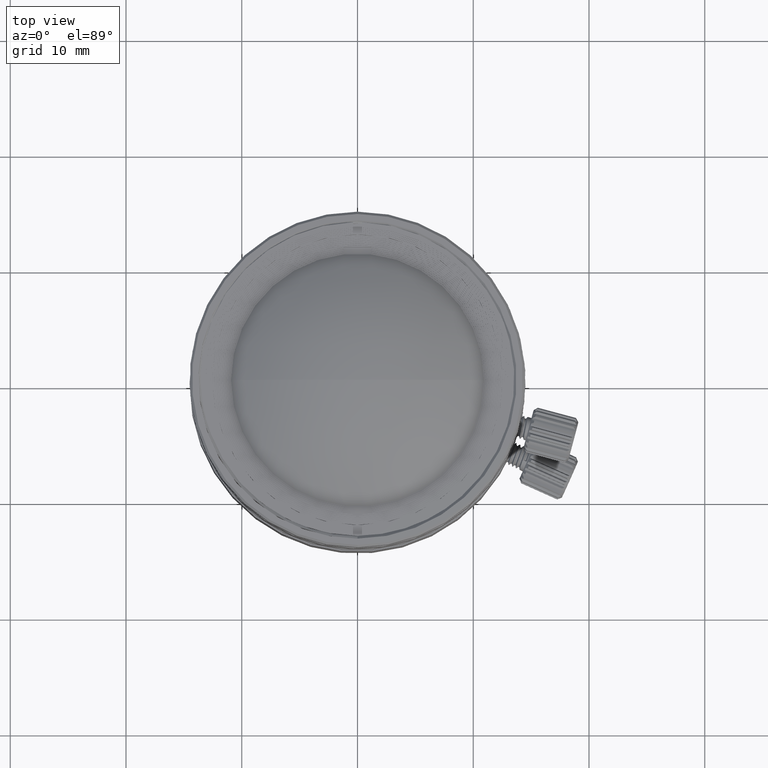
[diagram: clean part render]
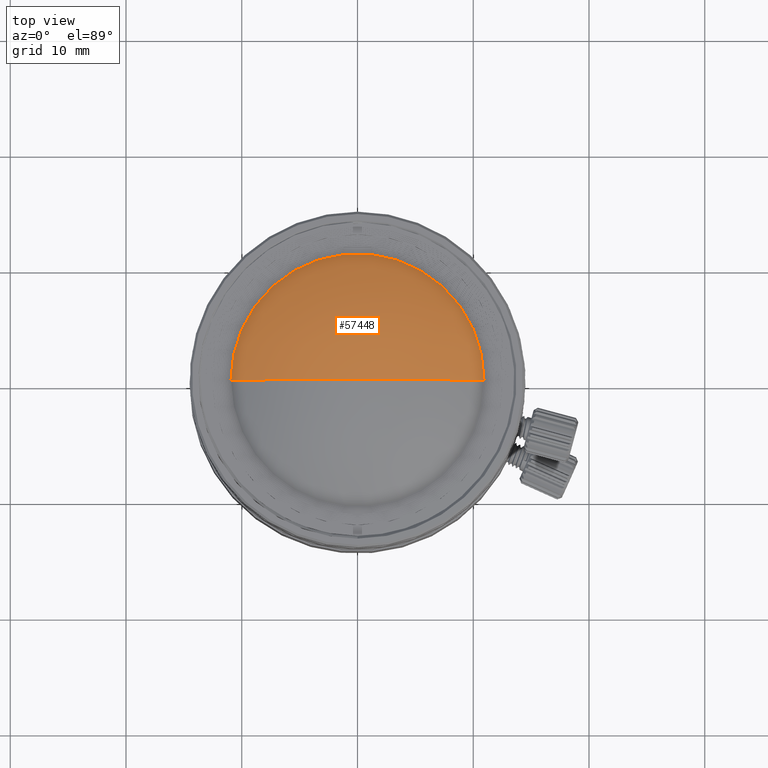
[diagram: same view with one face highlighted and labeled with its STEP entity id]
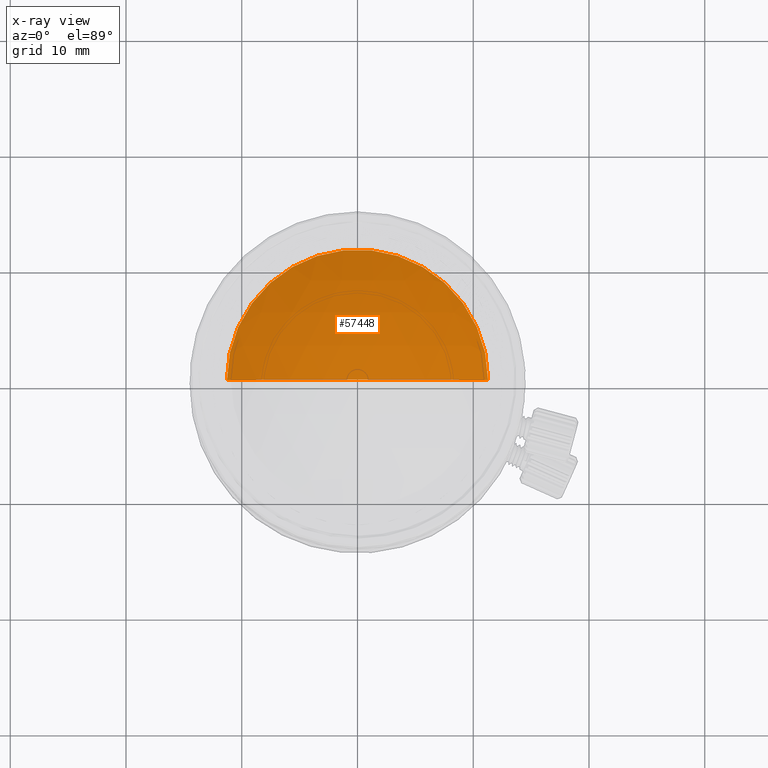
[diagram: x-ray of the same camera — body ghosted, the highlighted face saturated]
A machine part, top view. The second image highlights one B-rep face of the part: STEP entity #57448.
The next image is the same camera in x-ray: the body ghosted, the highlighted face saturated — about 0% of this face is hidden behind the body in this view.
In plain terms, the highlighted spherical surface has radius 20.918 mm.
Its self-contained STEP definition (entity closure, byte-faithful):
#206 = CIRCLE ( 'NONE', #26109, 20.91799999999999926 ) ;
#1837 = EDGE_CURVE ( 'NONE', #44534, #18234, #32159, .T. ) ;
#6211 = CARTESIAN_POINT ( 'NONE',  ( -2.344950224058070441E-12, 2.255242226815760463E-12, 34.55288846053060325 ) ) ;
#9069 = VERTEX_POINT ( 'NONE', #60916 ) ;
#9957 = CIRCLE ( 'NONE', #43375, 20.91799999999999926 ) ;
#9999 = CARTESIAN_POINT ( 'NONE',  ( -2.344950224058070441E-12, 2.255242226815760463E-12, 16.93743610408700206 ) ) ;
#11900 = CARTESIAN_POINT ( 'NONE',  ( -2.344950224058070441E-12, 2.255242226815760463E-12, 16.93743610408700206 ) ) ;
#14084 = DIRECTION ( 'NONE',  ( -0.9999999999987692068, 1.568964809501505619E-06, 0.000000000000000000 ) ) ;
#15065 = CARTESIAN_POINT ( 'NONE',  ( -2.344950224058070441E-12, 2.255242226815760463E-12, 16.93743610408700206 ) ) ;
#15781 = EDGE_CURVE ( 'NONE', #9069, #44534, #206, .T. ) ;
#15799 = EDGE_CURVE ( 'NONE', #9069, #18234, #9957, .T. ) ;
#16291 = FACE_OUTER_BOUND ( 'NONE', #42988, .T. ) ;
#17739 = CARTESIAN_POINT ( 'NONE',  ( 11.28089368257302638, -1.769932295246816139E-05, 34.55288846053060325 ) ) ;
#18234 = VERTEX_POINT ( 'NONE', #42158 ) ;
#26109 = AXIS2_PLACEMENT_3D ( 'NONE', #15065, #35638, #14084 ) ;
#26399 = DIRECTION ( 'NONE',  ( -0.9999999999987692068, 1.568964809623970278E-06, 0.000000000000000000 ) ) ;
#26442 = ORIENTED_EDGE ( 'NONE', *, *, #15799, .F. ) ;
#26811 = DIRECTION ( 'NONE',  ( 0.000000000000000000, 0.000000000000000000, 1.000000000000000000 ) ) ;
#28925 = AXIS2_PLACEMENT_3D ( 'NONE', #6211, #26811, #46049 ) ;
#30591 = DIRECTION ( 'NONE',  ( 0.9999999999987692068, -1.568964809623970489E-06, 0.000000000000000000 ) ) ;
#32159 = CIRCLE ( 'NONE', #28925, 11.28089368258999770 ) ;
#35638 = DIRECTION ( 'NONE',  ( 1.568964809501505831E-06, 0.9999999999987692068, 0.000000000000000000 ) ) ;
#40065 = DIRECTION ( 'NONE',  ( -1.568964809623970489E-06, -0.9999999999987692068, -0.000000000000000000 ) ) ;
#42158 = CARTESIAN_POINT ( 'NONE',  ( -11.28089368257771596, 1.769932746433412632E-05, 34.55288846053060325 ) ) ;
#42988 = EDGE_LOOP ( 'NONE', ( #26442, #51056, #58852 ) ) ;
#43375 = AXIS2_PLACEMENT_3D ( 'NONE', #9999, #40065, #30591 ) ;
#44534 = VERTEX_POINT ( 'NONE', #17739 ) ;
#46047 = AXIS2_PLACEMENT_3D ( 'NONE', #11900, #52052, #26399 ) ;
#46049 = DIRECTION ( 'NONE',  ( -0.9999999999987690957, 1.569039317135239964E-06, 0.000000000000000000 ) ) ;
#51056 = ORIENTED_EDGE ( 'NONE', *, *, #15781, .T. ) ;
#52052 = DIRECTION ( 'NONE',  ( 1.568964809623970278E-06, 0.9999999999987692068, 0.000000000000000000 ) ) ;
#57448 = ADVANCED_FACE ( 'NONE', ( #16291 ), #58438, .T. ) ;
#58438 = SPHERICAL_SURFACE ( 'NONE', #46047, 20.91799999999999926 ) ;
#58852 = ORIENTED_EDGE ( 'NONE', *, *, #1837, .T. ) ;
#60916 = CARTESIAN_POINT ( 'NONE',  ( -2.346231082145297208E-12, 2.255242228825381625E-12, 37.85543610408700488 ) ) ;